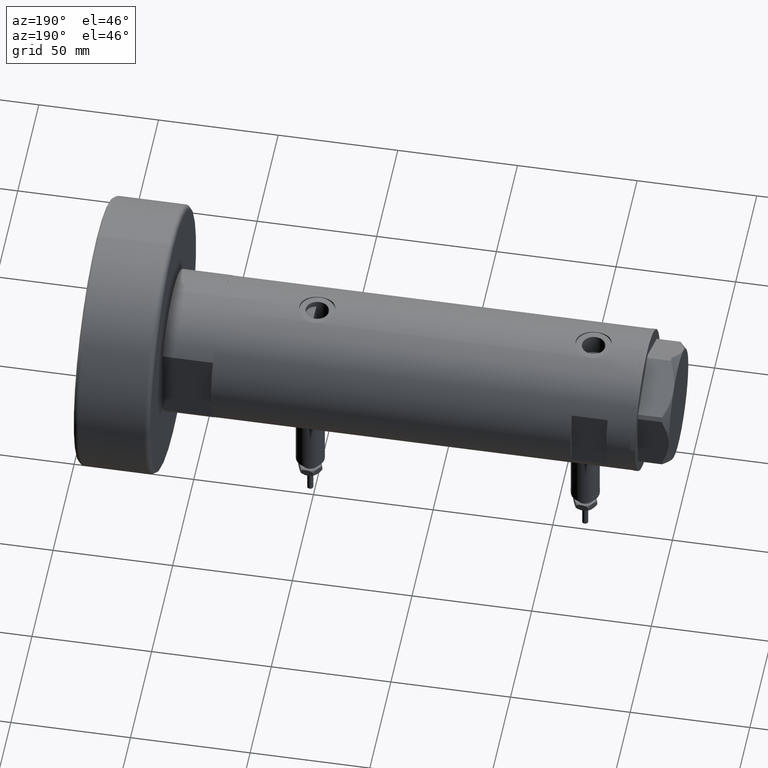
[diagram: clean part render]
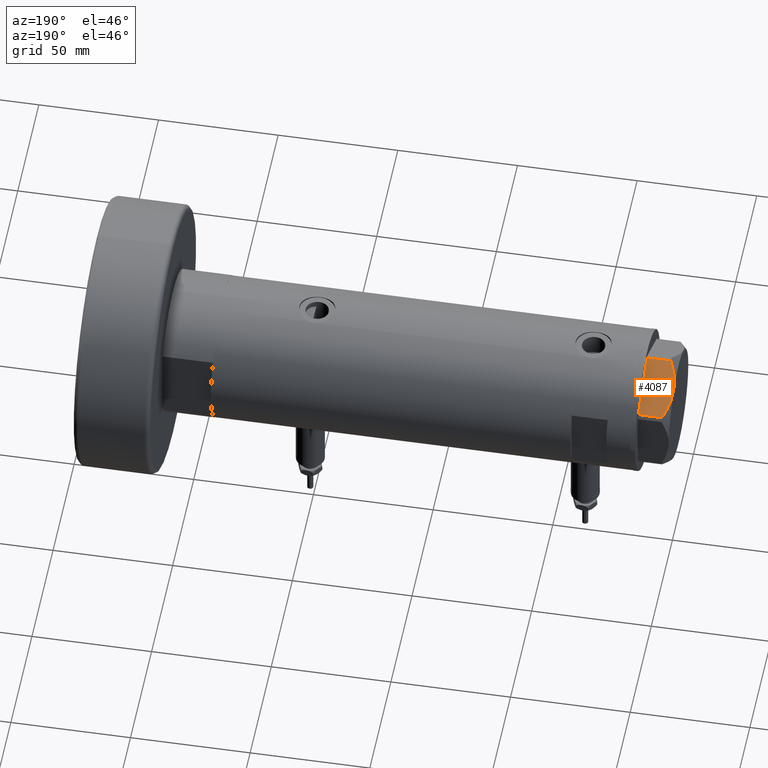
[diagram: same view with one face highlighted and labeled with its STEP entity id]
A machine part, auxiliary view. The second image highlights one B-rep face of the part: STEP entity #4087.
In plain terms, the highlighted planar face has unit normal (-0, -0.5, -0.866).
Its self-contained STEP definition (entity closure, byte-faithful):
#192 = CARTESIAN_POINT ( 'NONE',  ( 1.854543075583504180E-13, -26.55811238272274366, 0.000000000000000000 ) ) ;
#275 = CARTESIAN_POINT ( 'NONE',  ( 9.197898616903064095, -21.24770314027487927, 12.85271263895580240 ) ) ;
#397 = B_SPLINE_CURVE_WITH_KNOTS ( 'NONE', 3,
 ( #5201, #4189, #4161, #5688, #2790, #275, #1261, #5655, #1234, #2761 ),
 .UNSPECIFIED., .F., .F.,
 ( 4, 2, 2, 2, 4 ),
 ( 0.001228959670438509785, 0.007497079744270810156, 0.01063113978118696706, 0.01219816979964504465, 0.01376519981810312224 ),
 .UNSPECIFIED. ) ;
#563 = CARTESIAN_POINT ( 'NONE',  ( 22.03005154776154129, -13.83905619136115384, 9.983800287807621743 ) ) ;
#927 = EDGE_LOOP ( 'NONE', ( #4755, #2601, #1236, #3835, #5926 ) ) ;
#1234 = CARTESIAN_POINT ( 'NONE',  ( 11.04134848610952879, -20.18338686205092358, 13.00000000000009059 ) ) ;
#1236 = ORIENTED_EDGE ( 'NONE', *, *, #4706, .T. ) ;
#1252 = FACE_OUTER_BOUND ( 'NONE', #927, .T. ) ;
#1261 = CARTESIAN_POINT ( 'NONE',  ( 9.656518383329991906, -20.98291889467260773, 12.90784227772843451 ) ) ;
#1328 = EDGE_CURVE ( 'NONE', #4395, #3684, #3660, .T. ) ;
#1529 = CARTESIAN_POINT ( 'NONE',  ( 18.64279229058406173, -15.79469123530766517, 11.57055225522972286 ) ) ;
#1680 = EDGE_CURVE ( 'NONE', #4395, #4949, #397, .T. ) ;
#1703 = LINE ( 'NONE', #192, #4648 ) ;
#1742 = CARTESIAN_POINT ( 'NONE',  ( 1.854543075583504180E-13, -26.55811238272274366, 13.00000000000000000 ) ) ;
#2041 = EDGE_CURVE ( 'NONE', #4949, #5542, #3667, .T. ) ;
#2054 = CARTESIAN_POINT ( 'NONE',  ( 0.9699484522386113694, -25.99811238272281955, 9.983800287807545359 ) ) ;
#2182 = DIRECTION ( 'NONE',  ( -0.5000000000000069944, 0.8660254037844345998, 0.000000000000000000 ) ) ;
#2448 = CARTESIAN_POINT ( 'NONE',  ( 22.03005154776153773, -13.83905619136115739, 13.00000000000000000 ) ) ;
#2475 = LINE ( 'NONE', #2448, #5462 ) ;
#2601 = ORIENTED_EDGE ( 'NONE', *, *, #1328, .T. ) ;
#2653 = DIRECTION ( 'NONE',  ( 0.8660254037844345998, 0.5000000000000069944, 0.000000000000000000 ) ) ;
#2761 = CARTESIAN_POINT ( 'NONE',  ( 11.50000000000018296, -19.91858428704203732, 13.00000000000000000 ) ) ;
#2790 = CARTESIAN_POINT ( 'NONE',  ( 7.836767740116727943, -22.03355241838979595, 12.63731396715694544 ) ) ;
#2984 = CARTESIAN_POINT ( 'NONE',  ( 17.77001848220202618, -16.29858742851869735, 11.89212886775844780 ) ) ;
#3018 = CARTESIAN_POINT ( 'NONE',  ( 15.11535457301044616, -17.83125835109845880, 12.70765172847700342 ) ) ;
#3266 = DIRECTION ( 'NONE',  ( -0.8660254037844345998, -0.5000000000000069944, 0.000000000000000000 ) ) ;
#3463 = CARTESIAN_POINT ( 'NONE',  ( 19.07486218897005870, -15.54523556316577171, 11.39727285399141365 ) ) ;
#3522 = AXIS2_PLACEMENT_3D ( 'NONE', #1742, #2182, #3266 ) ;
#3581 = CARTESIAN_POINT ( 'NONE',  ( 13.32175508098997518, -18.86679350063487703, 13.00000000000009059 ) ) ;
#3640 = PLANE ( 'NONE',  #3522 ) ;
#3660 = LINE ( 'NONE', #6207, #4418 ) ;
#3667 = B_SPLINE_CURVE_WITH_KNOTS ( 'NONE', 3,
 ( #5876, #3581, #3018, #4411, #2984, #1529, #3463, #5393, #4920, #563 ),
 .UNSPECIFIED., .F., .F.,
 ( 4, 2, 2, 2, 4 ),
 ( 0.01376519981810312224, 0.01998941321701590279, 0.02154546656674409533, 0.02310151991647228786, 0.02621362661592867294 ),
 .UNSPECIFIED. ) ;
#3684 = VERTEX_POINT ( 'NONE', #5198 ) ;
#3835 = ORIENTED_EDGE ( 'NONE', *, *, #5761, .T. ) ;
#4047 = DIRECTION ( 'NONE',  ( 0.000000000000000000, 0.000000000000000000, -1.000000000000000000 ) ) ;
#4087 = ADVANCED_FACE ( 'NONE', ( #1252 ), #3640, .F. ) ;
#4161 = CARTESIAN_POINT ( 'NONE',  ( 4.320186229910045306, -24.06385169993492568, 11.62937486882610649 ) ) ;
#4189 = CARTESIAN_POINT ( 'NONE',  ( 2.626494320835804253, -25.04170517956326236, 10.87778242614345636 ) ) ;
#4272 = VERTEX_POINT ( 'NONE', #4376 ) ;
#4376 = CARTESIAN_POINT ( 'NONE',  ( 22.03005154776153773, -13.83905619136115561, 0.000000000000000000 ) ) ;
#4395 = VERTEX_POINT ( 'NONE', #2054 ) ;
#4396 = CARTESIAN_POINT ( 'NONE',  ( 11.50000000000018296, -19.91858428704203732, 13.00000000000000000 ) ) ;
#4411 = CARTESIAN_POINT ( 'NONE',  ( 17.32831362639728923, -16.55360584591992890, 12.04068176582933525 ) ) ;
#4418 = VECTOR ( 'NONE', #4047, 1000.000000000000000 ) ;
#4648 = VECTOR ( 'NONE', #2653, 999.9999999999998863 ) ;
#4706 = EDGE_CURVE ( 'NONE', #3684, #4272, #1703, .T. ) ;
#4755 = ORIENTED_EDGE ( 'NONE', *, *, #1680, .F. ) ;
#4920 = CARTESIAN_POINT ( 'NONE',  ( 21.20080365460329475, -14.31782268570100491, 10.43131750950939107 ) ) ;
#4949 = VERTEX_POINT ( 'NONE', #4396 ) ;
#5198 = CARTESIAN_POINT ( 'NONE',  ( 0.9699484522387533669, -25.99811238272273428, 0.000000000000000000 ) ) ;
#5201 = CARTESIAN_POINT ( 'NONE',  ( 0.9699484522386113694, -25.99811238272281955, 9.983800287807545359 ) ) ;
#5393 = CARTESIAN_POINT ( 'NONE',  ( 20.35958612119338085, -14.80349985506226673, 10.84420102443838552 ) ) ;
#5462 = VECTOR ( 'NONE', #5929, 1000.000000000000000 ) ;
#5542 = VERTEX_POINT ( 'NONE', #6228 ) ;
#5655 = CARTESIAN_POINT ( 'NONE',  ( 10.58093321976977030, -20.44920774001120023, 12.98168640760949799 ) ) ;
#5688 = CARTESIAN_POINT ( 'NONE',  ( 6.946777556903778184, -22.54738849024392877, 12.42689993760377654 ) ) ;
#5761 = EDGE_CURVE ( 'NONE', #4272, #5542, #2475, .T. ) ;
#5876 = CARTESIAN_POINT ( 'NONE',  ( 11.50000000000018296, -19.91858428704203732, 13.00000000000000000 ) ) ;
#5926 = ORIENTED_EDGE ( 'NONE', *, *, #2041, .F. ) ;
#5929 = DIRECTION ( 'NONE',  ( 0.000000000000000000, 0.000000000000000000, 1.000000000000000000 ) ) ;
#6207 = CARTESIAN_POINT ( 'NONE',  ( 0.9699484522387532559, -25.99811238272273428, 13.00000000000000000 ) ) ;
#6228 = CARTESIAN_POINT ( 'NONE',  ( 22.03005154776154129, -13.83905619136115384, 9.983800287807621743 ) ) ;